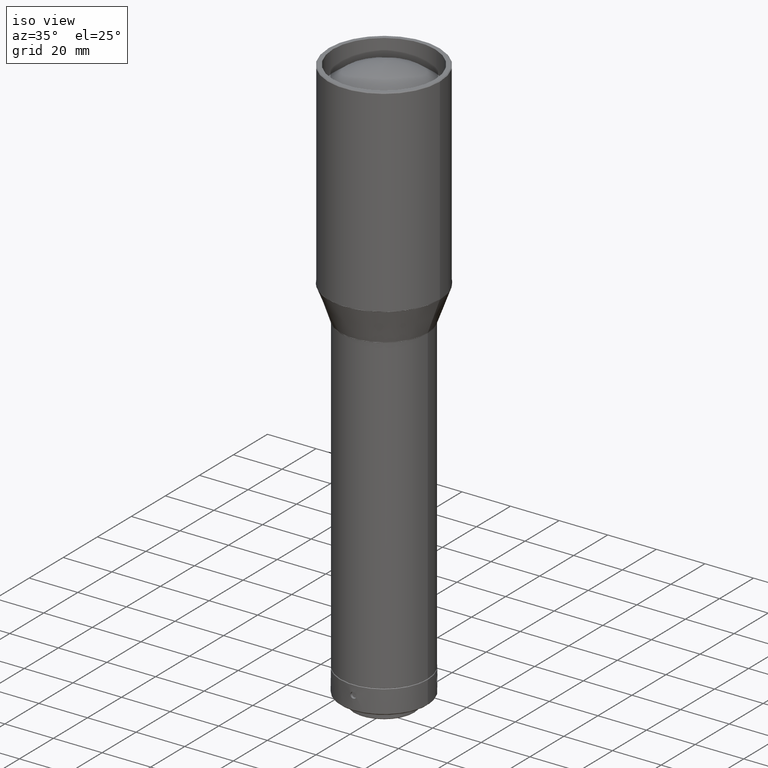
[diagram: clean part render]
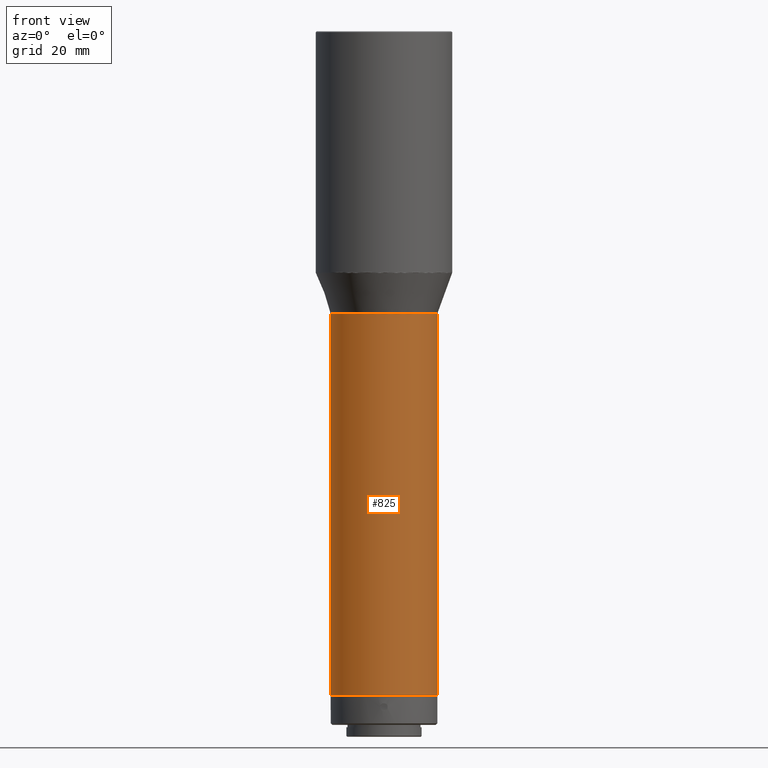
[diagram: tour spotlight — one face highlighted and labeled with its STEP entity id]
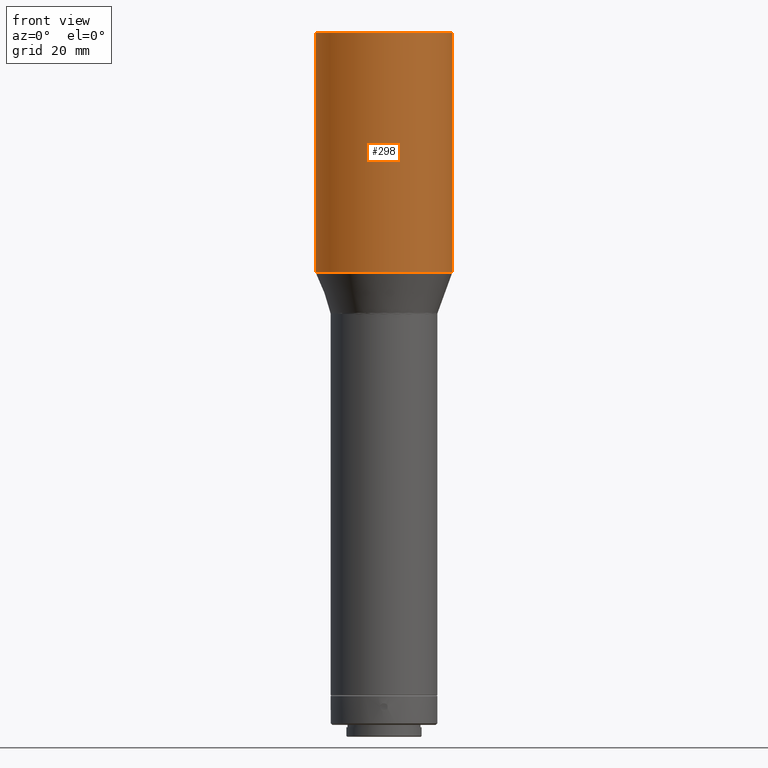
[diagram: tour spotlight — one face highlighted and labeled with its STEP entity id]
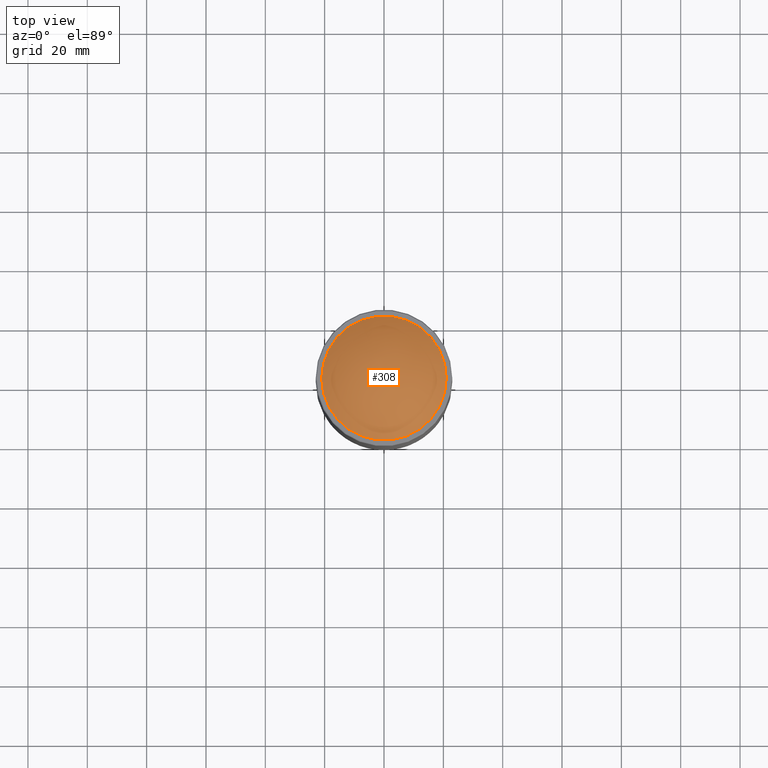
[diagram: tour spotlight — one face highlighted and labeled with its STEP entity id]
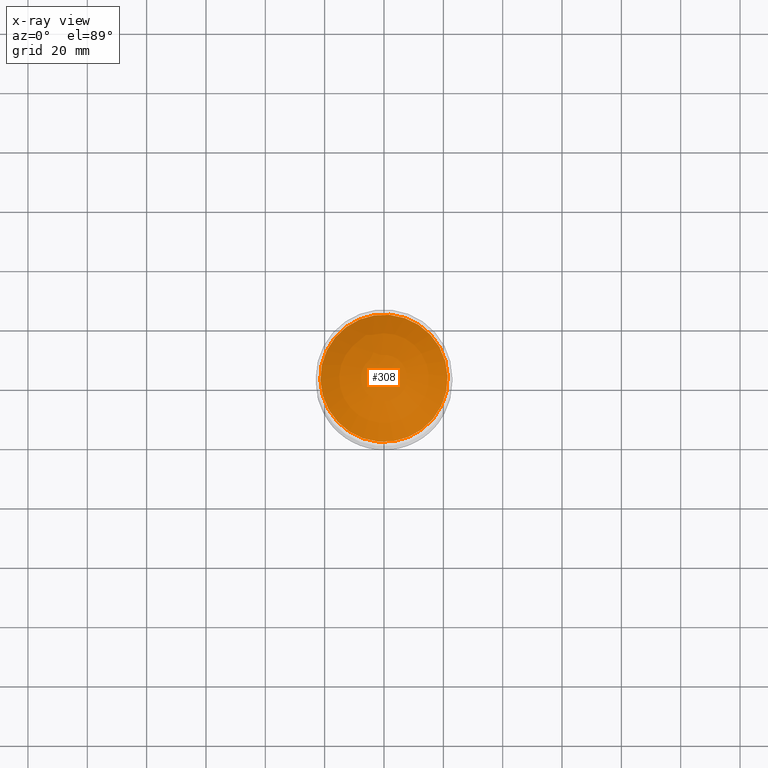
[diagram: x-ray of the same camera — body ghosted, this tour face saturated]
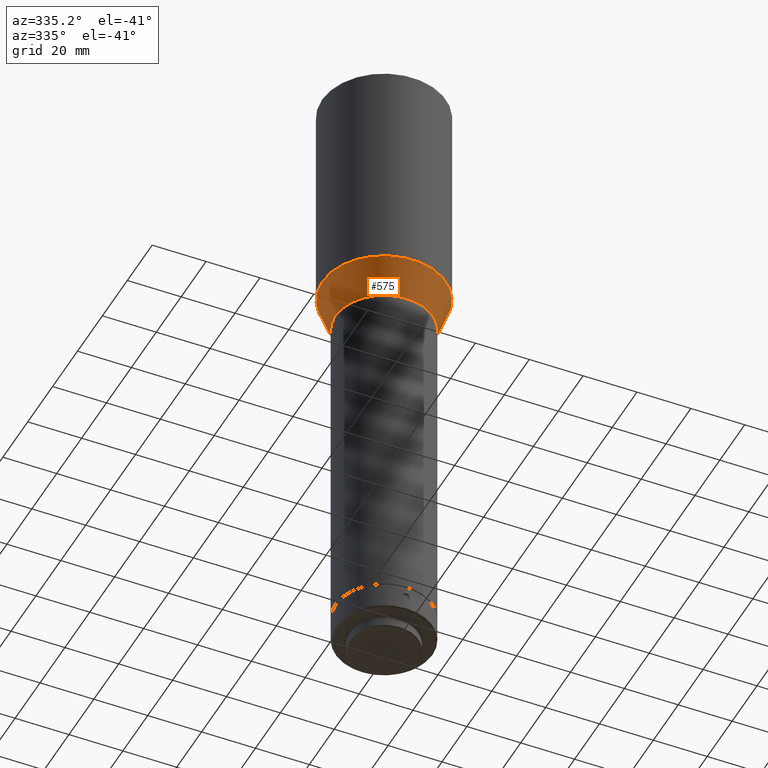
[diagram: tour spotlight — one face highlighted and labeled with its STEP entity id]
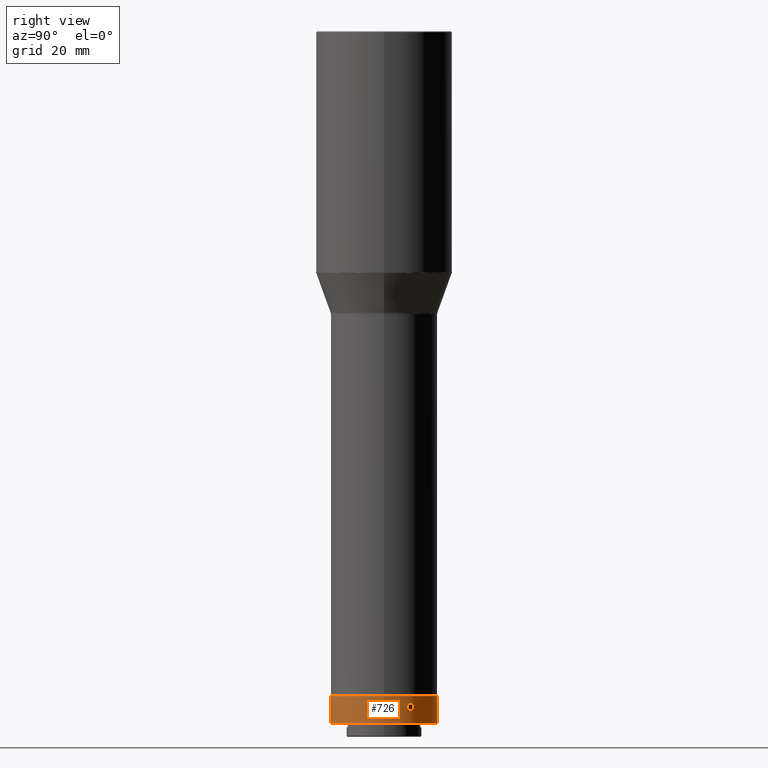
[diagram: tour spotlight — one face highlighted and labeled with its STEP entity id]
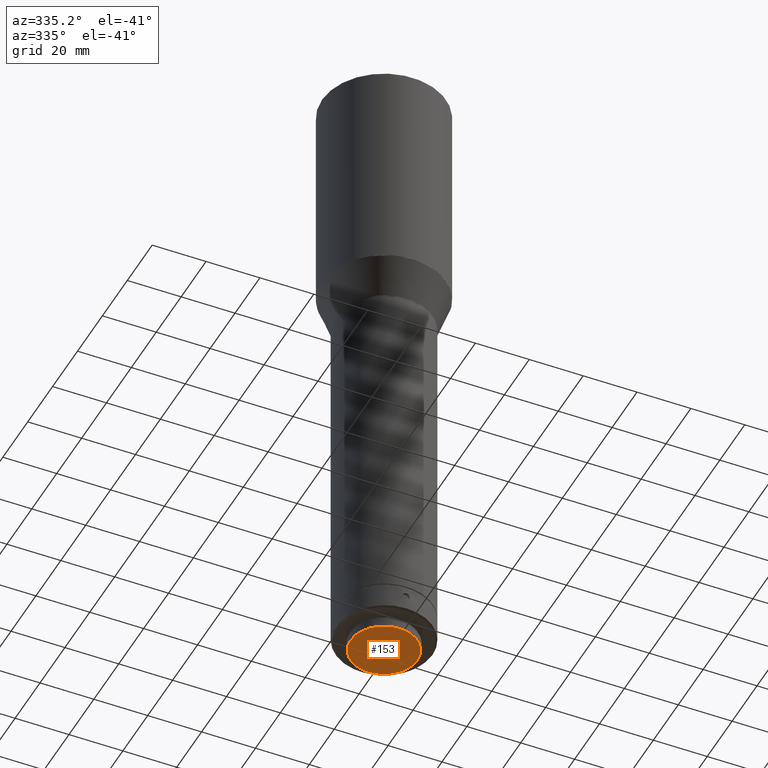
[diagram: tour spotlight — one face highlighted and labeled with its STEP entity id]
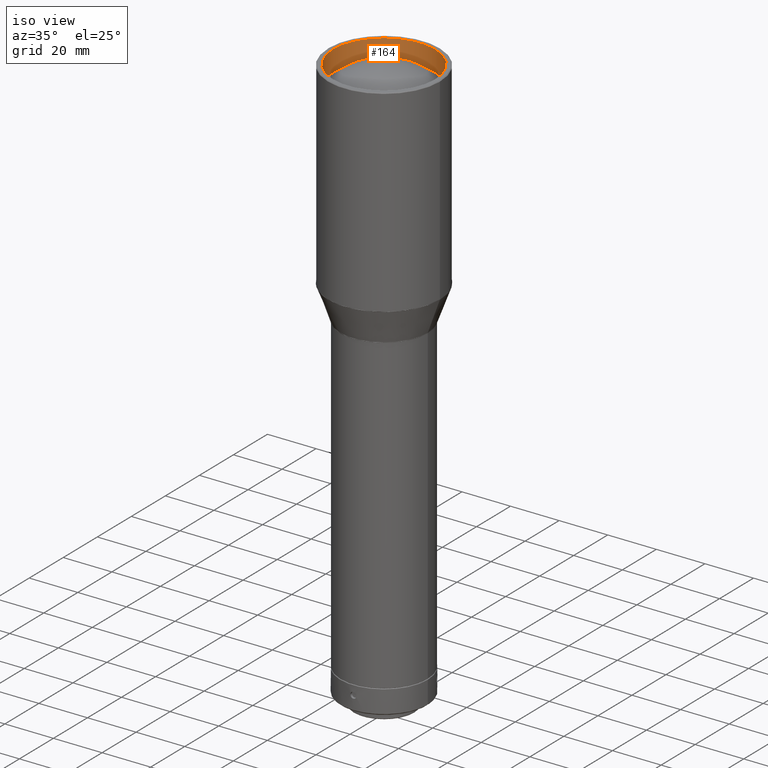
[diagram: tour spotlight — one face highlighted and labeled with its STEP entity id]
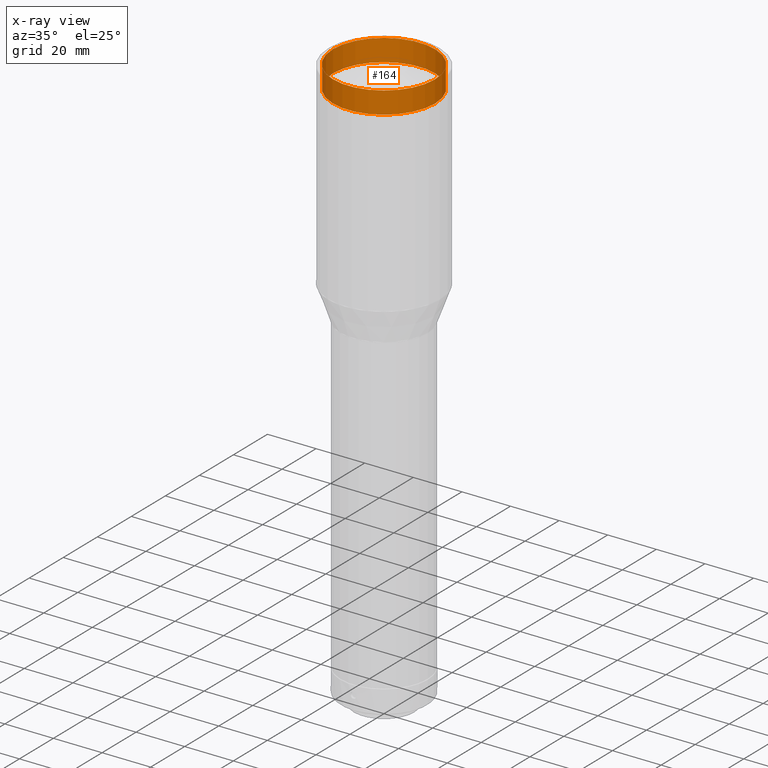
[diagram: x-ray of the same camera — body ghosted, this tour face saturated]
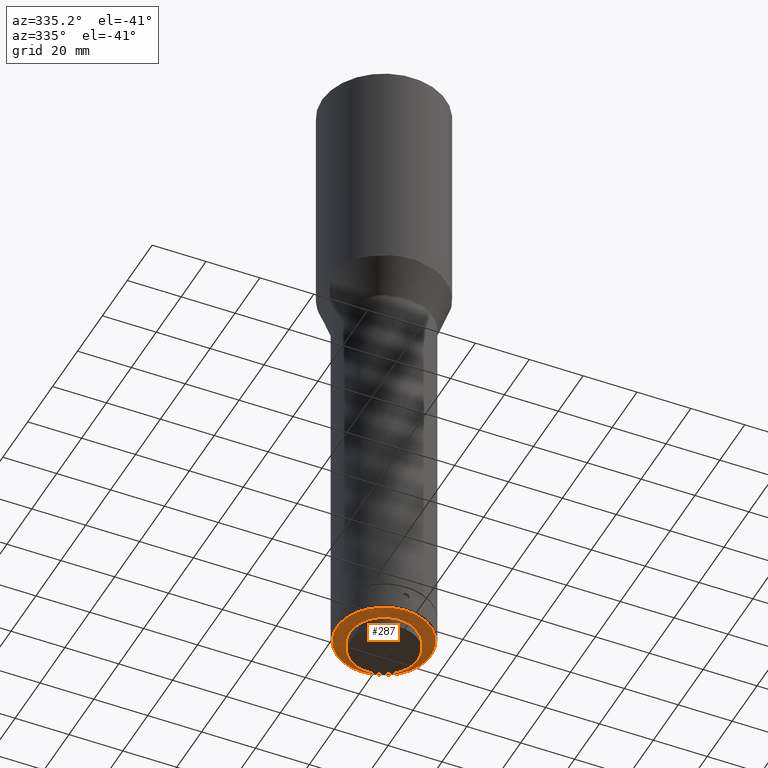
[diagram: tour spotlight — one face highlighted and labeled with its STEP entity id]
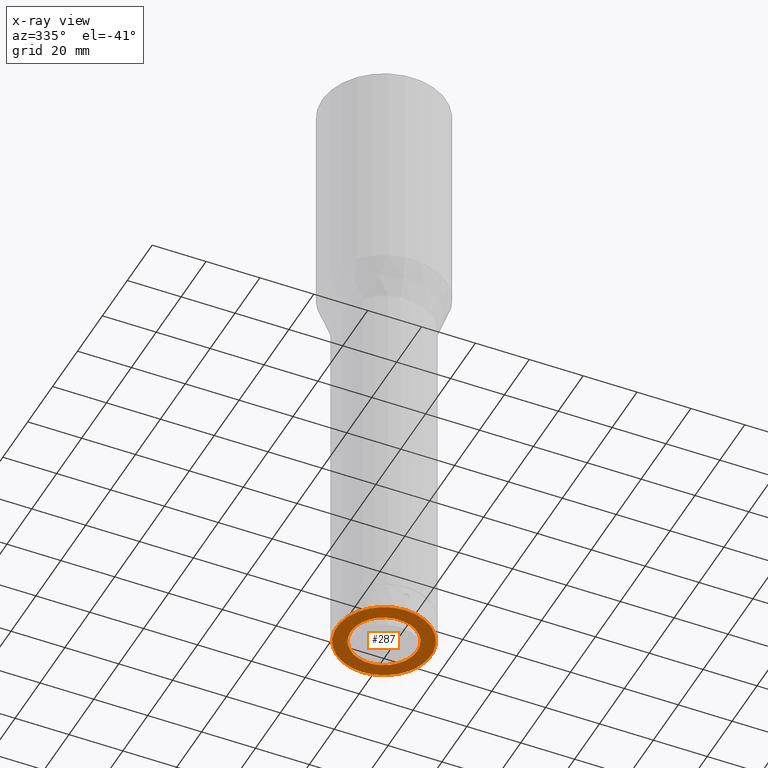
[diagram: x-ray of the same camera — body ghosted, this tour face saturated]
A machine part: a face-by-face anatomy tour. The part has 28 B-rep faces; the first image is the clean iso view, then the 8 largest visible faces are spotlighted one at a time (largest first), each with its STEP entity span.

Face 1 — front view, entity #825. In plain terms, the highlighted cylindrical surface (bore or boss wall) has radius 18 mm, axis along (0, 0, 1).
Definition (entity closure, byte-faithful):
#2 = CIRCLE ( 'NONE', #470, 17.99999999999998934 ) ;
#14 = ORIENTED_EDGE ( 'NONE', *, *, #24, .T. ) ;
#24 = EDGE_CURVE ( 'NONE', #747, #747, #663, .T. ) ;
#46 = CYLINDRICAL_SURFACE ( 'NONE', #227, 17.99999999999998934 ) ;
#151 = DIRECTION ( 'NONE',  ( 1.000000000000000000, 0.000000000000000000, 0.000000000000000000 ) ) ;
#163 = ORIENTED_EDGE ( 'NONE', *, *, #665, .T. ) ;
#223 = CARTESIAN_POINT ( 'NONE',  ( 3.581339779975172355E-33, 3.853573807495302464E-31, -497.9083896709889814 ) ) ;
#227 = AXIS2_PLACEMENT_3D ( 'NONE', #223, #696, #546 ) ;
#233 = FACE_OUTER_BOUND ( 'NONE', #328, .T. ) ;
#328 = EDGE_LOOP ( 'NONE', ( #14 ) ) ;
#417 = AXIS2_PLACEMENT_3D ( 'NONE', #697, #741, #151 ) ;
#451 = CARTESIAN_POINT ( 'NONE',  ( 3.581339779975172355E-33, 3.853573807495302464E-31, -533.2746590779817097 ) ) ;
#470 = AXIS2_PLACEMENT_3D ( 'NONE', #451, #684, #670 ) ;
#546 = DIRECTION ( 'NONE',  ( 1.000000000000000000, 0.000000000000000000, 0.000000000000000000 ) ) ;
#552 = FACE_OUTER_BOUND ( 'NONE', #583, .T. ) ;
#583 = EDGE_LOOP ( 'NONE', ( #163 ) ) ;
#655 = CARTESIAN_POINT ( 'NONE',  ( 17.99999999999998934, 3.853573807495302464E-31, -533.2746590779817097 ) ) ;
#663 = CIRCLE ( 'NONE', #417, 17.99999999999998934 ) ;
#665 = EDGE_CURVE ( 'NONE', #776, #776, #2, .T. ) ;
#670 = DIRECTION ( 'NONE',  ( 1.000000000000000000, 0.000000000000000000, 0.000000000000000000 ) ) ;
#684 = DIRECTION ( 'NONE',  ( -0.000000000000000000, -0.000000000000000000, -1.000000000000000000 ) ) ;
#696 = DIRECTION ( 'NONE',  ( 0.000000000000000000, 0.000000000000000000, 1.000000000000000000 ) ) ;
#697 = CARTESIAN_POINT ( 'NONE',  ( 3.581339779975172355E-33, 3.853573807495302464E-31, -661.6809450000000652 ) ) ;
#706 = CARTESIAN_POINT ( 'NONE',  ( 17.99999999999998934, 3.853573807495302464E-31, -661.6809450000000652 ) ) ;
#741 = DIRECTION ( 'NONE',  ( 0.000000000000000000, 0.000000000000000000, 1.000000000000000000 ) ) ;
#747 = VERTEX_POINT ( 'NONE', #706 ) ;
#776 = VERTEX_POINT ( 'NONE', #655 ) ;
#825 = ADVANCED_FACE ( 'NONE', ( #552, #233 ), #46, .T. ) ;

Face 2 — front view, entity #298. In plain terms, the highlighted cylindrical surface (bore or boss wall) has radius 23 mm, axis along (0, 0, 1).
Definition (entity closure, byte-faithful):
#67 = DIRECTION ( 'NONE',  ( 0.000000000000000000, 0.000000000000000000, -1.000000000000000000 ) ) ;
#73 = CARTESIAN_POINT ( 'NONE',  ( 3.581339779975172355E-33, 3.853573807495302464E-31, -519.1846180192916336 ) ) ;
#83 = FACE_OUTER_BOUND ( 'NONE', #172, .T. ) ;
#129 = CARTESIAN_POINT ( 'NONE',  ( 2.126977070614405733E-15, -4.008608459946269651E-15, -438.0000000000000000 ) ) ;
#142 = CARTESIAN_POINT ( 'NONE',  ( 2.126977070614405733E-15, -4.008608459946269651E-15, -438.3000000000000114 ) ) ;
#152 = AXIS2_PLACEMENT_3D ( 'NONE', #129, #445, #807 ) ;
#172 = EDGE_LOOP ( 'NONE', ( #485 ) ) ;
#188 = CARTESIAN_POINT ( 'NONE',  ( -23.00000000000000000, -2.393918396847989846E-16, -519.1846180192916336 ) ) ;
#221 = AXIS2_PLACEMENT_3D ( 'NONE', #142, #450, #799 ) ;
#260 = CYLINDRICAL_SURFACE ( 'NONE', #152, 23.00000000000001421 ) ;
#298 = ADVANCED_FACE ( 'NONE', ( #401, #83 ), #260, .T. ) ;
#314 = CARTESIAN_POINT ( 'NONE',  ( 23.00000000000001776, -4.008608459946269651E-15, -438.3000000000000114 ) ) ;
#401 = FACE_OUTER_BOUND ( 'NONE', #748, .T. ) ;
#445 = DIRECTION ( 'NONE',  ( 0.000000000000000000, 0.000000000000000000, 1.000000000000000000 ) ) ;
#450 = DIRECTION ( 'NONE',  ( -0.000000000000000000, -0.000000000000000000, -1.000000000000000000 ) ) ;
#485 = ORIENTED_EDGE ( 'NONE', *, *, #499, .F. ) ;
#497 = VERTEX_POINT ( 'NONE', #314 ) ;
#499 = EDGE_CURVE ( 'NONE', #787, #787, #771, .T. ) ;
#524 = EDGE_CURVE ( 'NONE', #497, #497, #664, .T. ) ;
#533 = ORIENTED_EDGE ( 'NONE', *, *, #524, .T. ) ;
#664 = CIRCLE ( 'NONE', #221, 23.00000000000001421 ) ;
#748 = EDGE_LOOP ( 'NONE', ( #533 ) ) ;
#771 = CIRCLE ( 'NONE', #784, 23.00000000000000000 ) ;
#784 = AXIS2_PLACEMENT_3D ( 'NONE', #73, #67, #791 ) ;
#787 = VERTEX_POINT ( 'NONE', #188 ) ;
#791 = DIRECTION ( 'NONE',  ( -1.000000000000000000, -1.040834085586084103E-17, 0.000000000000000000 ) ) ;
#799 = DIRECTION ( 'NONE',  ( 1.000000000000000000, 0.000000000000000000, 0.000000000000000000 ) ) ;
#807 = DIRECTION ( 'NONE',  ( 1.000000000000000000, 0.000000000000000000, 0.000000000000000000 ) ) ;

Face 3 — top view, entity #308. An x-ray twin of the same camera follows (body ghosted, this face saturated) — the face is partly hidden behind the body. In plain terms, the highlighted spherical surface has radius 31.2095 mm.
Definition (entity closure, byte-faithful):
#38 = EDGE_CURVE ( 'NONE', #488, #488, #139, .T. ) ;
#86 = CARTESIAN_POINT ( 'NONE',  ( -2.775557561562891351E-14, 1.387778780781445676E-14, -447.0000000000000568 ) ) ;
#139 = CIRCLE ( 'NONE', #840, 21.45211006975307555 ) ;
#193 = EDGE_LOOP ( 'NONE', ( #334 ) ) ;
#308 = ADVANCED_FACE ( 'NONE', ( #505 ), #778, .T. ) ;
#334 = ORIENTED_EDGE ( 'NONE', *, *, #38, .F. ) ;
#341 = DIRECTION ( 'NONE',  ( -0.3830490080632378835, 0.9237280213470681067, 0.000000000000000000 ) ) ;
#345 = DIRECTION ( 'NONE',  ( -1.232595164407830946E-32, -1.318609258053555361E-16, -1.000000000000000000 ) ) ;
#484 = CARTESIAN_POINT ( 'NONE',  ( 8.217209483082285715, -19.81591518845251088, -447.0000000000000568 ) ) ;
#488 = VERTEX_POINT ( 'NONE', #484 ) ;
#505 = FACE_OUTER_BOUND ( 'NONE', #193, .T. ) ;
#723 = CARTESIAN_POINT ( 'NONE',  ( -2.775557561562891351E-14, 8.673617379884035472E-15, -469.6680567275547560 ) ) ;
#778 = SPHERICAL_SURFACE ( 'NONE', #797, 31.20951493132240273 ) ;
#785 = DIRECTION ( 'NONE',  ( 4.665676044949140993E-17, 1.934749774458438248E-17, 1.000000000000000000 ) ) ;
#797 = AXIS2_PLACEMENT_3D ( 'NONE', #723, #785, #341 ) ;
#810 = DIRECTION ( 'NONE',  ( 0.3830490080632379390, -0.9237280213470682178, 0.000000000000000000 ) ) ;
#840 = AXIS2_PLACEMENT_3D ( 'NONE', #86, #345, #810 ) ;

Face 4 — auxiliary view, entity #575. In plain terms, the highlighted conical surface has half-angle 20 deg.
Definition (entity closure, byte-faithful):
#42 = VERTEX_POINT ( 'NONE', #162 ) ;
#68 = AXIS2_PLACEMENT_3D ( 'NONE', #814, #355, #337 ) ;
#88 = FACE_BOUND ( 'NONE', #400, .T. ) ;
#97 = DIRECTION ( 'NONE',  ( -0.000000000000000000, -0.000000000000000000, -1.000000000000000000 ) ) ;
#114 = EDGE_CURVE ( 'NONE', #42, #42, #613, .T. ) ;
#162 = CARTESIAN_POINT ( 'NONE',  ( 18.06030737921410889, 1.879778351644796385E-16, -532.9326389346558699 ) ) ;
#191 = CONICAL_SURFACE ( 'NONE', #632, 22.93969262078589111, 0.3490658503988669503 ) ;
#261 = AXIS2_PLACEMENT_3D ( 'NONE', #371, #97, #353 ) ;
#337 = DIRECTION ( 'NONE',  ( 1.000000000000000000, 1.040834085586084103E-17, 0.000000000000000000 ) ) ;
#353 = DIRECTION ( 'NONE',  ( 1.000000000000000000, 1.040834085586084257E-17, 0.000000000000000000 ) ) ;
#355 = DIRECTION ( 'NONE',  ( 0.000000000000000000, 0.000000000000000000, 1.000000000000000000 ) ) ;
#371 = CARTESIAN_POINT ( 'NONE',  ( 3.581339779975172355E-33, 3.853573807495302464E-31, -519.5266381626172461 ) ) ;
#391 = CIRCLE ( 'NONE', #261, 22.93969262078588756 ) ;
#400 = EDGE_LOOP ( 'NONE', ( #693 ) ) ;
#407 = FACE_OUTER_BOUND ( 'NONE', #637, .T. ) ;
#437 = VERTEX_POINT ( 'NONE', #650 ) ;
#466 = ORIENTED_EDGE ( 'NONE', *, *, #588, .T. ) ;
#490 = DIRECTION ( 'NONE',  ( 0.000000000000000000, -0.000000000000000000, 1.000000000000000000 ) ) ;
#494 = DIRECTION ( 'NONE',  ( 1.000000000000000000, 0.000000000000000000, 0.000000000000000000 ) ) ;
#575 = ADVANCED_FACE ( 'NONE', ( #407, #88 ), #191, .T. ) ;
#588 = EDGE_CURVE ( 'NONE', #437, #437, #391, .T. ) ;
#613 = CIRCLE ( 'NONE', #68, 18.06030737921410889 ) ;
#632 = AXIS2_PLACEMENT_3D ( 'NONE', #834, #490, #494 ) ;
#637 = EDGE_LOOP ( 'NONE', ( #466 ) ) ;
#650 = CARTESIAN_POINT ( 'NONE',  ( 22.93969262078588756, 2.387641399258156216E-16, -519.5266381626172461 ) ) ;
#693 = ORIENTED_EDGE ( 'NONE', *, *, #114, .T. ) ;
#814 = CARTESIAN_POINT ( 'NONE',  ( 3.581339779975172355E-33, 3.853573807495302464E-31, -532.9326389346558699 ) ) ;
#834 = CARTESIAN_POINT ( 'NONE',  ( 0.000000000000000000, 3.851859888774471706E-31, -519.5266381626172461 ) ) ;

Face 5 — right view, entity #726. In plain terms, the highlighted cylindrical surface (bore or boss wall) has radius 18 mm, axis along (0, 0, 1).
Definition (entity closure, byte-faithful):
#4 = B_SPLINE_CURVE_WITH_KNOTS ( 'NONE', 3,
 ( #20, #358, #159, #682, #826, #608, #549, #619, #236, #808, #411, #624, #225, #285, #612, #544, #279, #486, #29, #348, #34, #687, #821, #173, #231, #813, #535, #40, #482, #756, #169, #760, #468, #155 ),
 .UNSPECIFIED., .T., .F.,
 ( 4, 2, 2, 2, 2, 2, 2, 2, 2, 2, 2, 2, 2, 2, 2, 2, 4 ),
 ( 0.000000000000000000, 0.0004885519476059295343, 0.0009771038952118590686, 0.001465655842817788603, 0.001954207790423718137, 0.002442759738029647888, 0.002931311685635577206, 0.003419863633241506523, 0.003908415580847436274, 0.004396967528453366025, 0.004885519476059295776, 0.005374071423665224660, 0.005862623371271154411, 0.006351175318877084162, 0.006839727266483013046, 0.007328279214088942797, 0.007816831161694872548 ),
 .UNSPECIFIED. ) ;
#20 = CARTESIAN_POINT ( 'NONE',  ( 16.17582393315551315, 7.895740629197085525, -665.7809450000005427 ) ) ;
#21 = CARTESIAN_POINT ( 'NONE',  ( 4.567875856050203761E-15, 1.816993461002733458E-15, -671.2809449999999742 ) ) ;
#25 = DIRECTION ( 'NONE',  ( 0.000000000000000000, 0.000000000000000000, 1.000000000000000000 ) ) ;
#29 = CARTESIAN_POINT ( 'NONE',  ( 14.94412316329297674, 10.03379964370064314, -666.1082458894952651 ) ) ;
#32 = ORIENTED_EDGE ( 'NONE', *, *, #564, .T. ) ;
#34 = CARTESIAN_POINT ( 'NONE',  ( 15.06517510034525920, 9.851589683955907617, -666.5495771668024645 ) ) ;
#40 = CARTESIAN_POINT ( 'NONE',  ( 15.89389197149334088, 8.450273622267832963, -666.8736210156605466 ) ) ;
#44 = CARTESIAN_POINT ( 'NONE',  ( -15.01384693159024231, 9.929166768100165186, -665.1509386262733869 ) ) ;
#47 = CARTESIAN_POINT ( 'NONE',  ( -14.92582393315537814, 10.06080413865839951, -665.6157457607349670 ) ) ;
#52 = CARTESIAN_POINT ( 'NONE',  ( -14.94416663059033112, 10.03373538488429695, -666.1085700172557154 ) ) ;
#58 = CARTESIAN_POINT ( 'NONE',  ( 0.3284442371330014154, -17.99763189204312752, -666.9979603772535484 ) ) ;
#65 = CARTESIAN_POINT ( 'NONE',  ( -0.7685930773333526922, -17.98395353626940363, -664.7817755139830069 ) ) ;
#69 = CARTESIAN_POINT ( 'NONE',  ( 1.000012230497523413, -17.97258022027629920, -665.0130258980899498 ) ) ;
#81 = EDGE_LOOP ( 'NONE', ( #357 ) ) ;
#87 = B_SPLINE_CURVE_WITH_KNOTS ( 'NONE', 3,
 ( #657, #374, #197, #434, #263, #65, #516, #121, #772, #250, #789, #725, #136, #69, #709, #327, #715, #641, #377, #309, #842, #504, #646, #58, #574, #219, #740, #527, #801, #266, #344, #143, #330, #471 ),
 .UNSPECIFIED., .T., .F.,
 ( 4, 2, 2, 2, 2, 2, 2, 2, 2, 2, 2, 2, 2, 2, 2, 2, 4 ),
 ( 0.000000000000000000, 0.0004885519476059282332, 0.0009771038952118564665, 0.001465655842817784700, 0.001954207790423712933, 0.002442759738029640949, 0.002931311685635569399, 0.003419863633241497849, 0.003908415580847425866, 0.004396967528453353882, 0.004885519476059281899, 0.005374071423665210782, 0.005862623371271138799, 0.006351175318877066815, 0.006839727266482995699, 0.007328279214088923715, 0.007816831161694851732 ),
 .UNSPECIFIED. ) ;
#98 = AXIS2_PLACEMENT_3D ( 'NONE', #424, #302, #555 ) ;
#111 = CARTESIAN_POINT ( 'NONE',  ( -15.89389229175798235, 8.450273022655027333, -664.6882693457097275 ) ) ;
#113 = VERTEX_POINT ( 'NONE', #688 ) ;
#115 = CARTESIAN_POINT ( 'NONE',  ( -16.10573125108188108, 8.037996199706920919, -665.1505204048874020 ) ) ;
#121 = CARTESIAN_POINT ( 'NONE',  ( -0.3284446131914074973, -17.99763188640062594, -664.5639296990356115 ) ) ;
#128 = B_SPLINE_CURVE_WITH_KNOTS ( 'NONE', 3,
 ( #244, #47, #299, #44, #707, #563, #183, #640, #822, #491, #293, #111, #560, #365, #115, #174, #625, #249, #765, #359, #831, #429, #704, #502, #620, #177, #828, #836, #487, #551, #629, #52, #290, #232 ),
 .UNSPECIFIED., .T., .F.,
 ( 4, 2, 2, 2, 2, 2, 2, 2, 2, 2, 2, 2, 2, 2, 2, 2, 4 ),
 ( 0.000000000000000000, 0.0004885519476059306185, 0.0009771038952118612370, 0.001465655842817791855, 0.001954207790423722474, 0.002442759738029650490, 0.002931311685635578507, 0.003419863633241506523, 0.003908415580847434539, 0.004396967528453362556, 0.004885519476059290572, 0.005374071423665218589, 0.005862623371271146605, 0.006351175318877074621, 0.006839727266483002638, 0.007328279214088930654, 0.007816831161694858671 ),
 .UNSPECIFIED. ) ;
#136 = CARTESIAN_POINT ( 'NONE',  ( 0.7665056236649524513, -17.98405219532854815, -664.7798489321261286 ) ) ;
#141 = EDGE_CURVE ( 'NONE', #415, #415, #247, .T. ) ;
#143 = CARTESIAN_POINT ( 'NONE',  ( -1.217386422865440965, -17.95889563292107738, -666.1085700172557154 ) ) ;
#155 = CARTESIAN_POINT ( 'NONE',  ( 16.17582393315551315, 7.895740629197085525, -665.7809450000005427 ) ) ;
#158 = EDGE_LOOP ( 'NONE', ( #282 ) ) ;
#159 = CARTESIAN_POINT ( 'NONE',  ( 16.16158720264612825, 7.925089998557210968, -665.4536459706282585 ) ) ;
#169 = CARTESIAN_POINT ( 'NONE',  ( 16.10573089449705719, 8.037996915324869818, -666.4113709346066798 ) ) ;
#173 = CARTESIAN_POINT ( 'NONE',  ( 15.42218430790377504, 9.283256999105457652, -666.9979603772536620 ) ) ;
#174 = CARTESIAN_POINT ( 'NONE',  ( -16.16155327807074116, 7.925159788840828945, -665.4533217959091189 ) ) ;
#177 = CARTESIAN_POINT ( 'NONE',  ( -15.50735797605623034, 9.140483702072652150, -667.0310573759027193 ) ) ;
#179 = EDGE_CURVE ( 'NONE', #350, #350, #827, .T. ) ;
#183 = CARTESIAN_POINT ( 'NONE',  ( -15.26487564935874452, 9.539717018441047358, -664.6886491845228875 ) ) ;
#186 = EDGE_CURVE ( 'NONE', #113, #113, #128, .T. ) ;
#197 = CARTESIAN_POINT ( 'NONE',  ( -1.217464335294272670, -17.95889008224765959, -665.4536459706278038 ) ) ;
#213 = DIRECTION ( 'NONE',  ( 1.000000000000000000, 0.000000000000000000, 0.000000000000000000 ) ) ;
#214 = FACE_BOUND ( 'NONE', #158, .T. ) ;
#215 = EDGE_LOOP ( 'NONE', ( #32 ) ) ;
#219 = CARTESIAN_POINT ( 'NONE',  ( -0.1622121008446782697, -18.00000780388025490, -667.0310573759026056 ) ) ;
#225 = CARTESIAN_POINT ( 'NONE',  ( 15.19139325230758963, 9.655839439901392041, -664.7798489321262423 ) ) ;
#231 = CARTESIAN_POINT ( 'NONE',  ( 15.50648075862407005, 9.141971788833757273, -667.0308320273638856 ) ) ;
#232 = CARTESIAN_POINT ( 'NONE',  ( -14.92582393315539413, 10.06080413865837819, -665.7809450000002016 ) ) ;
#236 = CARTESIAN_POINT ( 'NONE',  ( 15.67042028344148719, 8.858020202463210424, -664.5310579727665754 ) ) ;
#244 = CARTESIAN_POINT ( 'NONE',  ( -14.92582393315539413, 10.06080413865837819, -665.7809450000002016 ) ) ;
#247 = CIRCLE ( 'NONE', #323, 18.00000000000000355 ) ;
#249 = CARTESIAN_POINT ( 'NONE',  ( -16.17582379988434482, 7.895740902226659585, -665.9461462896941839 ) ) ;
#250 = CARTESIAN_POINT ( 'NONE',  ( 0.1622122895001362197, -18.00000780388930366, -664.5308326239671715 ) ) ;
#262 = CARTESIAN_POINT ( 'NONE',  ( -1.249999999999982681, -17.95654476785553300, -665.7809449999999742 ) ) ;
#263 = CARTESIAN_POINT ( 'NONE',  ( -0.9991402188564446618, -17.97261914514089653, -665.0123138769148454 ) ) ;
#266 = CARTESIAN_POINT ( 'NONE',  ( -1.000011374074654125, -17.97258026762708383, -666.5488651707623831 ) ) ;
#279 = CARTESIAN_POINT ( 'NONE',  ( 14.92582376334306105, 10.06080439058547249, -665.6157482969530292 ) ) ;
#282 = ORIENTED_EDGE ( 'NONE', *, *, #633, .T. ) ;
#285 = CARTESIAN_POINT ( 'NONE',  ( 15.06470492706444908, 9.852326105843838278, -665.0130258980900635 ) ) ;
#290 = CARTESIAN_POINT ( 'NONE',  ( -14.92582393315541189, 10.06080413865835510, -665.9461442392653225 ) ) ;
#293 = CARTESIAN_POINT ( 'NONE',  ( -15.74948724688812440, 8.716454428236502849, -664.5631601631300782 ) ) ;
#299 = CARTESIAN_POINT ( 'NONE',  ( -14.94412286735163242, 10.03380008369035714, -665.4536459706282585 ) ) ;
#302 = DIRECTION ( 'NONE',  ( -0.000000000000000000, -0.000000000000000000, 1.000000000000000000 ) ) ;
#304 = VERTEX_POINT ( 'NONE', #262 ) ;
#309 = CARTESIAN_POINT ( 'NONE',  ( 1.091986416381275582, -17.96695628302231995, -666.4109526652778186 ) ) ;
#323 = AXIS2_PLACEMENT_3D ( 'NONE', #21, #25, #213 ) ;
#327 = CARTESIAN_POINT ( 'NONE',  ( 1.217386932848478098, -17.95889559784533063, -665.4533217959091189 ) ) ;
#330 = CARTESIAN_POINT ( 'NONE',  ( -1.249999999999997113, -17.95654476785554365, -665.9461442392654362 ) ) ;
#339 = FACE_BOUND ( 'NONE', #720, .T. ) ;
#344 = CARTESIAN_POINT ( 'NONE',  ( -1.091755923036186848, -17.96697055881274707, -666.4113709346066798 ) ) ;
#347 = FACE_OUTER_BOUND ( 'NONE', #689, .T. ) ;
#348 = CARTESIAN_POINT ( 'NONE',  ( 15.01384736159116073, 9.929166118684838338, -666.4109526652775912 ) ) ;
#350 = VERTEX_POINT ( 'NONE', #621 ) ;
#357 = ORIENTED_EDGE ( 'NONE', *, *, #179, .F. ) ;
#358 = CARTESIAN_POINT ( 'NONE',  ( 16.17582393315551670, 7.895740629197055327, -665.6157457607351944 ) ) ;
#359 = CARTESIAN_POINT ( 'NONE',  ( -16.10583377797241766, 8.037790164337414112, -666.4109526652775912 ) ) ;
#361 = CARTESIAN_POINT ( 'NONE',  ( 18.00000000000000711, 1.816993461002733458E-15, -671.2809449999999742 ) ) ;
#365 = CARTESIAN_POINT ( 'NONE',  ( -16.06471715756162411, 8.120254114432409409, -665.0130258980896087 ) ) ;
#374 = CARTESIAN_POINT ( 'NONE',  ( -1.249999999999968026, -17.95654476785553300, -665.6157457607343986 ) ) ;
#377 = CARTESIAN_POINT ( 'NONE',  ( 1.217463806281623651, -17.95889011854548656, -666.1082458894954925 ) ) ;
#411 = CARTESIAN_POINT ( 'NONE',  ( 15.42341458922628838, 9.281228838265839443, -664.5631601631301919 ) ) ;
#415 = VERTEX_POINT ( 'NONE', #361 ) ;
#424 = CARTESIAN_POINT ( 'NONE',  ( 4.567875856050203761E-15, 1.816993461002733458E-15, -662.0809450000000425 ) ) ;
#429 = CARTESIAN_POINT ( 'NONE',  ( -15.95885680708792798, 8.326356316898310794, -666.7801150424837715 ) ) ;
#434 = CARTESIAN_POINT ( 'NONE',  ( -1.091987193791577493, -17.96695623533828368, -665.1509386262725911 ) ) ;
#468 = CARTESIAN_POINT ( 'NONE',  ( 16.17582393315550959, 7.895740629197113059, -665.9461442392656636 ) ) ;
#471 = CARTESIAN_POINT ( 'NONE',  ( -1.249999999999982458, -17.95654476785554010, -665.7809449999998606 ) ) ;
#482 = CARTESIAN_POINT ( 'NONE',  ( 15.95789852174031864, 8.328213433529166210, -666.7820416175250102 ) ) ;
#486 = CARTESIAN_POINT ( 'NONE',  ( 14.92582410297038287, 10.06080388672738302, -665.9461462896939565 ) ) ;
#487 = CARTESIAN_POINT ( 'NONE',  ( -15.19139366244528411, 9.655838794076602838, -666.7820416175248965 ) ) ;
#491 = CARTESIAN_POINT ( 'NONE',  ( -15.66957017123612594, 8.859523938431866696, -664.5308326239673988 ) ) ;
#502 = CARTESIAN_POINT ( 'NONE',  ( -15.75062854503694965, 8.714374892937597039, -666.9979603772537757 ) ) ;
#503 = CARTESIAN_POINT ( 'NONE',  ( 16.17582393315551315, 7.895740629197083749, -665.7809450000003153 ) ) ;
#504 = CARTESIAN_POINT ( 'NONE',  ( 0.7685923121488266174, -17.98395356874551609, -666.7801150424841126 ) ) ;
#516 = CARTESIAN_POINT ( 'NONE',  ( -0.6291994582049399432, -17.98962860717569612, -664.6886491845228875 ) ) ;
#519 = CARTESIAN_POINT ( 'NONE',  ( 4.567875856050203761E-15, 1.816993461002733458E-15, -661.7809450000000879 ) ) ;
#527 = CARTESIAN_POINT ( 'NONE',  ( -0.6287943599332995737, -17.98965102345267297, -666.8736210156605466 ) ) ;
#532 = CYLINDRICAL_SURFACE ( 'NONE', #700, 18.00000000000000355 ) ;
#535 = CARTESIAN_POINT ( 'NONE',  ( 15.74948706598767600, 8.716454752419862118, -666.9987299096970901 ) ) ;
#544 = CARTESIAN_POINT ( 'NONE',  ( 14.94416634522249510, 10.03373580900444928, -665.4533217959088915 ) ) ;
#549 = CARTESIAN_POINT ( 'NONE',  ( 15.89407510756410424, 8.449911588734563495, -664.6886491845228875 ) ) ;
#551 = CARTESIAN_POINT ( 'NONE',  ( -15.06470539628272931, 9.852325387835483284, -666.5488651707627241 ) ) ;
#555 = DIRECTION ( 'NONE',  ( 1.000000000000000000, 2.220446049250313081E-16, 0.000000000000000000 ) ) ;
#560 = CARTESIAN_POINT ( 'NONE',  ( -15.95789887597213408, 8.328212755427101044, -664.7798489321259012 ) ) ;
#563 = CARTESIAN_POINT ( 'NONE',  ( -15.19026408422143248, 9.657597898278536874, -664.7817755139835754 ) ) ;
#564 = EDGE_CURVE ( 'NONE', #636, #636, #4, .T. ) ;
#574 = CARTESIAN_POINT ( 'NONE',  ( 0.1639394304985097306, -17.99999215467991931, -667.0308320273638856 ) ) ;
#586 = ORIENTED_EDGE ( 'NONE', *, *, #186, .T. ) ;
#600 = FACE_OUTER_BOUND ( 'NONE', #81, .T. ) ;
#608 = CARTESIAN_POINT ( 'NONE',  ( 15.95885716155517819, 8.326355637990781489, -664.7817755139832343 ) ) ;
#610 = FACE_BOUND ( 'NONE', #215, .T. ) ;
#612 = CARTESIAN_POINT ( 'NONE',  ( 15.01397453000996585, 9.928974310108321433, -665.1505204048876294 ) ) ;
#619 = CARTESIAN_POINT ( 'NONE',  ( 15.75062872817974124, 8.714374564439982151, -664.5639296990360663 ) ) ;
#620 = CARTESIAN_POINT ( 'NONE',  ( -15.67042018912277079, 8.858020365846087429, -667.0308320273637719 ) ) ;
#621 = CARTESIAN_POINT ( 'NONE',  ( 18.00000000000000000, 5.813796349653295426E-15, -662.0809450000000425 ) ) ;
#624 = CARTESIAN_POINT ( 'NONE',  ( 15.26509725241260540, 9.539377978348507980, -664.6882693457098412 ) ) ;
#625 = CARTESIAN_POINT ( 'NONE',  ( -16.17582406642459247, 7.895740356171731200, -665.6157482969528019 ) ) ;
#629 = CARTESIAN_POINT ( 'NONE',  ( -15.01397497146086124, 9.928973643487811529, -666.4113709346066798 ) ) ;
#633 = EDGE_CURVE ( 'NONE', #304, #304, #87, .T. ) ;
#636 = VERTEX_POINT ( 'NONE', #503 ) ;
#640 = CARTESIAN_POINT ( 'NONE',  ( -15.42218411498787667, 9.283257321960578068, -664.5639296990362936 ) ) ;
#641 = CARTESIAN_POINT ( 'NONE',  ( 1.249999696914071201, -17.95654478895410122, -665.9461462896944113 ) ) ;
#646 = CARTESIAN_POINT ( 'NONE',  ( 0.6291987904826664701, -17.98962862930886075, -666.8732411720308164 ) ) ;
#657 = CARTESIAN_POINT ( 'NONE',  ( -1.249999999999982458, -17.95654476785554010, -665.7809449999998606 ) ) ;
#682 = CARTESIAN_POINT ( 'NONE',  ( 16.10583412538212755, 8.037789467238040331, -665.1509386262732733 ) ) ;
#687 = CARTESIAN_POINT ( 'NONE',  ( 15.19026449493897779, 9.657597251847136022, -666.7801150424836578 ) ) ;
#688 = CARTESIAN_POINT ( 'NONE',  ( -14.92582393315539591, 10.06080413865837819, -665.7809450000003153 ) ) ;
#689 = EDGE_LOOP ( 'NONE', ( #736 ) ) ;
#700 = AXIS2_PLACEMENT_3D ( 'NONE', #519, #795, #728 ) ;
#704 = CARTESIAN_POINT ( 'NONE',  ( -15.89407479287072178, 8.449912178065833501, -666.8732411720307027 ) ) ;
#707 = CARTESIAN_POINT ( 'NONE',  ( -15.06517464280619834, 9.851590384043113602, -665.0123138769148454 ) ) ;
#709 = CARTESIAN_POINT ( 'NONE',  ( 1.091756721072246306, -17.96697050981528676, -665.1505204048878568 ) ) ;
#715 = CARTESIAN_POINT ( 'NONE',  ( 1.250000303081723052, -17.95654474675725965, -665.6157482969532566 ) ) ;
#720 = EDGE_LOOP ( 'NONE', ( #586 ) ) ;
#725 = CARTESIAN_POINT ( 'NONE',  ( 0.6287950393458392462, -17.98965100100357972, -664.6882693457099549 ) ) ;
#726 = ADVANCED_FACE ( 'NONE', ( #347, #339, #610, #600, #214 ), #532, .T. ) ;
#728 = DIRECTION ( 'NONE',  ( 1.000000000000000000, 0.000000000000000000, 0.000000000000000000 ) ) ;
#736 = ORIENTED_EDGE ( 'NONE', *, *, #141, .T. ) ;
#740 = CARTESIAN_POINT ( 'NONE',  ( -0.3260722864607841220, -17.99768327192969153, -666.9987299096970901 ) ) ;
#756 = CARTESIAN_POINT ( 'NONE',  ( 16.06471677035730394, 8.120254879791550806, -666.5488651707624967 ) ) ;
#760 = CARTESIAN_POINT ( 'NONE',  ( 16.16155305345584026, 7.925160248036709376, -666.1085700172559427 ) ) ;
#765 = CARTESIAN_POINT ( 'NONE',  ( -16.16158696957451824, 7.925090474844780353, -666.1082458894953788 ) ) ;
#772 = CARTESIAN_POINT ( 'NONE',  ( -0.1639396191513173839, -17.99999215467087410, -664.5310579727666891 ) ) ;
#789 = CARTESIAN_POINT ( 'NONE',  ( 0.3260726576623297346, -17.99768326650239914, -664.5631601631306467 ) ) ;
#795 = DIRECTION ( 'NONE',  ( 0.000000000000000000, 0.000000000000000000, 1.000000000000000000 ) ) ;
#801 = CARTESIAN_POINT ( 'NONE',  ( -0.7665048592951690942, -17.98405222760583655, -666.7820416175248965 ) ) ;
#808 = CARTESIAN_POINT ( 'NONE',  ( 15.50735788173647300, 9.140483865457371238, -664.5308326239671715 ) ) ;
#813 = CARTESIAN_POINT ( 'NONE',  ( 15.66957007690071180, 8.859524101807537022, -667.0310573759023782 ) ) ;
#821 = CARTESIAN_POINT ( 'NONE',  ( 15.26487600238791664, 9.539716451242952644, -666.8732411720305890 ) ) ;
#822 = CARTESIAN_POINT ( 'NONE',  ( -15.50648066428969685, 9.141971952207590846, -664.5310579727664617 ) ) ;
#826 = CARTESIAN_POINT ( 'NONE',  ( 16.06431486166297518, 8.121028761097697668, -665.0123138769149591 ) ) ;
#827 = CIRCLE ( 'NONE', #98, 17.99999999999999645 ) ;
#828 = CARTESIAN_POINT ( 'NONE',  ( -15.42341477952707329, 9.281228519509769015, -666.9987299096969764 ) ) ;
#831 = CARTESIAN_POINT ( 'NONE',  ( -16.06431448413917806, 8.121029507381740231, -666.5495771668028056 ) ) ;
#836 = CARTESIAN_POINT ( 'NONE',  ( -15.26509761156019707, 9.539377401184779615, -666.8736210156608877 ) ) ;
#842 = CARTESIAN_POINT ( 'NONE',  ( 0.9991393837938693512, -17.97261919133772423, -666.5495771668028056 ) ) ;

Face 6 — auxiliary view, entity #153. In plain terms, the highlighted planar face has unit normal (0, 0, 1).
Definition (entity closure, byte-faithful):
#84 = DIRECTION ( 'NONE',  ( 0.000000000000000000, 0.000000000000000000, 1.000000000000000000 ) ) ;
#101 = VERTEX_POINT ( 'NONE', #356 ) ;
#153 = ADVANCED_FACE ( 'NONE', ( #464 ), #739, .F. ) ;
#352 = CIRCLE ( 'NONE', #559, 12.40000000000000746 ) ;
#356 = CARTESIAN_POINT ( 'NONE',  ( 12.40000000000001101, 1.816993461002733458E-15, -675.7809450000000879 ) ) ;
#442 = EDGE_CURVE ( 'NONE', #101, #101, #352, .T. ) ;
#459 = DIRECTION ( 'NONE',  ( 1.000000000000000000, 0.000000000000000000, 0.000000000000000000 ) ) ;
#464 = FACE_OUTER_BOUND ( 'NONE', #601, .T. ) ;
#559 = AXIS2_PLACEMENT_3D ( 'NONE', #587, #803, #459 ) ;
#587 = CARTESIAN_POINT ( 'NONE',  ( 4.336808689942017736E-15, 1.816993461002733458E-15, -675.7809450000000879 ) ) ;
#601 = EDGE_LOOP ( 'NONE', ( #816 ) ) ;
#604 = DIRECTION ( 'NONE',  ( 1.000000000000000000, 0.000000000000000000, -0.000000000000000000 ) ) ;
#679 = CARTESIAN_POINT ( 'NONE',  ( 6.954855358994289534E-15, -10.75000000000000000, -675.7809450000000879 ) ) ;
#739 = PLANE ( 'NONE',  #811 ) ;
#803 = DIRECTION ( 'NONE',  ( -0.000000000000000000, 0.000000000000000000, 1.000000000000000000 ) ) ;
#811 = AXIS2_PLACEMENT_3D ( 'NONE', #679, #84, #604 ) ;
#816 = ORIENTED_EDGE ( 'NONE', *, *, #442, .F. ) ;

Face 7 — iso view, entity #164. An x-ray twin of the same camera follows (body ghosted, this face saturated) — the face is partly hidden behind the body. In plain terms, the highlighted cylindrical surface (bore or boss wall) has radius 21 mm, axis along (-0, -0, 1).
Definition (entity closure, byte-faithful):
#18 = DIRECTION ( 'NONE',  ( 0.000000000000000000, 0.000000000000000000, 1.000000000000000000 ) ) ;
#64 = CARTESIAN_POINT ( 'NONE',  ( 21.00000000000000000, 0.000000000000000000, -447.0000000000000000 ) ) ;
#85 = DIRECTION ( 'NONE',  ( 0.000000000000000000, 0.000000000000000000, 1.000000000000000000 ) ) ;
#93 = ORIENTED_EDGE ( 'NONE', *, *, #733, .T. ) ;
#119 = ORIENTED_EDGE ( 'NONE', *, *, #788, .F. ) ;
#120 = FACE_OUTER_BOUND ( 'NONE', #595, .T. ) ;
#146 = CIRCLE ( 'NONE', #550, 21.00000000000000000 ) ;
#164 = ADVANCED_FACE ( 'NONE', ( #343, #120 ), #701, .F. ) ;
#170 = DIRECTION ( 'NONE',  ( 1.000000000000000000, 0.000000000000000000, 0.000000000000000000 ) ) ;
#196 = VERTEX_POINT ( 'NONE', #510 ) ;
#271 = DIRECTION ( 'NONE',  ( 1.000000000000000000, 0.000000000000000000, 0.000000000000000000 ) ) ;
#343 = FACE_OUTER_BOUND ( 'NONE', #472, .T. ) ;
#393 = DIRECTION ( 'NONE',  ( 1.000000000000000000, 0.000000000000000000, 0.000000000000000000 ) ) ;
#405 = CARTESIAN_POINT ( 'NONE',  ( 0.000000000000000000, 0.000000000000000000, -438.0000000000000000 ) ) ;
#435 = CIRCLE ( 'NONE', #848, 21.00000000000000000 ) ;
#454 = AXIS2_PLACEMENT_3D ( 'NONE', #774, #757, #170 ) ;
#472 = EDGE_LOOP ( 'NONE', ( #119 ) ) ;
#510 = CARTESIAN_POINT ( 'NONE',  ( 21.00000000000000000, 0.000000000000000000, -438.0000000000000000 ) ) ;
#550 = AXIS2_PLACEMENT_3D ( 'NONE', #405, #18, #393 ) ;
#595 = EDGE_LOOP ( 'NONE', ( #93 ) ) ;
#680 = CARTESIAN_POINT ( 'NONE',  ( 0.000000000000000000, 0.000000000000000000, -447.0000000000000000 ) ) ;
#701 = CYLINDRICAL_SURFACE ( 'NONE', #454, 21.00000000000000000 ) ;
#733 = EDGE_CURVE ( 'NONE', #196, #196, #146, .T. ) ;
#757 = DIRECTION ( 'NONE',  ( -0.000000000000000000, -0.000000000000000000, 1.000000000000000000 ) ) ;
#774 = CARTESIAN_POINT ( 'NONE',  ( 0.000000000000000000, 0.000000000000000000, -447.0000000000000000 ) ) ;
#781 = VERTEX_POINT ( 'NONE', #64 ) ;
#788 = EDGE_CURVE ( 'NONE', #781, #781, #435, .T. ) ;
#848 = AXIS2_PLACEMENT_3D ( 'NONE', #680, #85, #271 ) ;

Face 8 — auxiliary view, entity #287. An x-ray twin of the same camera follows (body ghosted, this face saturated) — the face is partly hidden behind the body. In plain terms, the highlighted planar face has unit normal (0, 0, 1).
Definition (entity closure, byte-faithful):
#15 = DIRECTION ( 'NONE',  ( 1.000000000000000000, 0.000000000000000000, -0.000000000000000000 ) ) ;
#28 = AXIS2_PLACEMENT_3D ( 'NONE', #342, #71, #659 ) ;
#59 = CARTESIAN_POINT ( 'NONE',  ( 7.299024496628086641E-15, -12.29999999999999716, -671.7809450000000879 ) ) ;
#71 = DIRECTION ( 'NONE',  ( -0.000000000000000000, 3.083952846180989294E-15, 1.000000000000000000 ) ) ;
#89 = DIRECTION ( 'NONE',  ( -0.000000000000000000, -0.000000000000000000, -1.000000000000000000 ) ) ;
#100 = EDGE_CURVE ( 'NONE', #167, #167, #427, .T. ) ;
#102 = EDGE_LOOP ( 'NONE', ( #796 ) ) ;
#148 = FACE_OUTER_BOUND ( 'NONE', #500, .T. ) ;
#156 = DIRECTION ( 'NONE',  ( 1.000000000000000000, 0.000000000000000000, 0.000000000000000000 ) ) ;
#167 = VERTEX_POINT ( 'NONE', #833 ) ;
#194 = DIRECTION ( 'NONE',  ( 0.000000000000000000, 0.000000000000000000, 1.000000000000000000 ) ) ;
#287 = ADVANCED_FACE ( 'NONE', ( #534, #148 ), #780, .F. ) ;
#297 = CIRCLE ( 'NONE', #28, 17.49999999999997513 ) ;
#338 = AXIS2_PLACEMENT_3D ( 'NONE', #734, #89, #156 ) ;
#342 = CARTESIAN_POINT ( 'NONE',  ( 5.204170427930421283E-15, 2.750170379121730890E-16, -671.7809450000000879 ) ) ;
#366 = VERTEX_POINT ( 'NONE', #631 ) ;
#416 = ORIENTED_EDGE ( 'NONE', *, *, #481, .F. ) ;
#427 = CIRCLE ( 'NONE', #338, 12.29999999999999893 ) ;
#440 = AXIS2_PLACEMENT_3D ( 'NONE', #59, #194, #15 ) ;
#481 = EDGE_CURVE ( 'NONE', #366, #366, #297, .T. ) ;
#500 = EDGE_LOOP ( 'NONE', ( #416 ) ) ;
#534 = FACE_BOUND ( 'NONE', #102, .T. ) ;
#631 = CARTESIAN_POINT ( 'NONE',  ( 5.204170427930421283E-15, -17.49999999999997513, -671.7809450000000879 ) ) ;
#659 = DIRECTION ( 'NONE',  ( 0.000000000000000000, -1.000000000000000000, 0.000000000000000000 ) ) ;
#734 = CARTESIAN_POINT ( 'NONE',  ( 4.567875856050203761E-15, 1.816993461002733458E-15, -671.7809450000000879 ) ) ;
#780 = PLANE ( 'NONE',  #440 ) ;
#796 = ORIENTED_EDGE ( 'NONE', *, *, #100, .F. ) ;
#833 = CARTESIAN_POINT ( 'NONE',  ( 12.30000000000000426, 1.816993461002733458E-15, -671.7809450000000879 ) ) ;